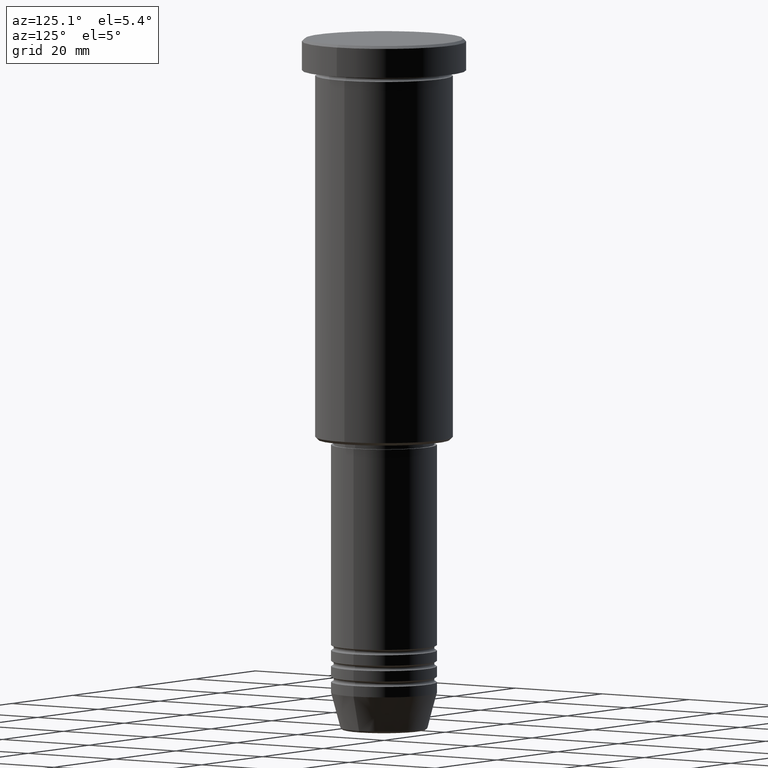
[diagram: clean part render]
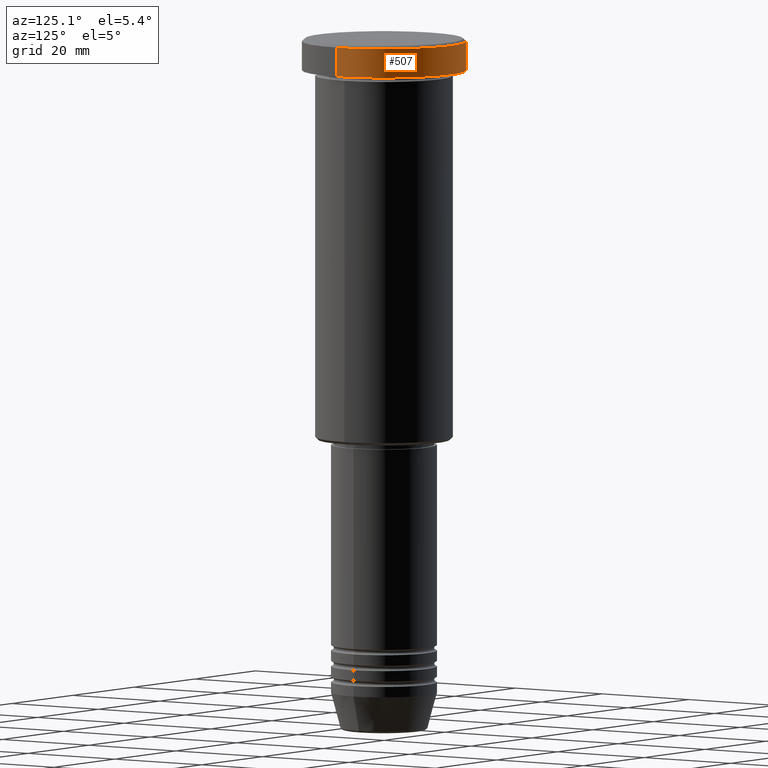
[diagram: same view with one face highlighted and labeled with its STEP entity id]
A machine part, auxiliary view. The second image highlights one B-rep face of the part: STEP entity #507.
In plain terms, the highlighted cylindrical surface (partial cylindrical patch) has radius 15.5 mm, axis along (-0, -0, 1).
Its self-contained STEP definition (entity closure, byte-faithful):
#6 = AXIS2_PLACEMENT_3D ( 'NONE', #925, #280, #1109 ) ;
#20 = CARTESIAN_POINT ( 'NONE',  ( 15.50000000000000000, 0.000000000000000000, -0.4999999999999709677 ) ) ;
#41 = ORIENTED_EDGE ( 'NONE', *, *, #343, .T. ) ;
#71 = DIRECTION ( 'NONE',  ( 0.000000000000000000, 0.000000000000000000, -1.000000000000000000 ) ) ;
#78 = VERTEX_POINT ( 'NONE', #707 ) ;
#105 = CARTESIAN_POINT ( 'NONE',  ( 15.50000000000000000, 0.000000000000000000, 0.000000000000000000 ) ) ;
#136 = AXIS2_PLACEMENT_3D ( 'NONE', #264, #71, #905 ) ;
#165 = CYLINDRICAL_SURFACE ( 'NONE', #6, 15.50000000000000000 ) ;
#239 = FACE_OUTER_BOUND ( 'NONE', #1165, .T. ) ;
#264 = CARTESIAN_POINT ( 'NONE',  ( 0.000000000000000000, 0.000000000000000000, -0.4999999999999709677 ) ) ;
#280 = DIRECTION ( 'NONE',  ( -0.000000000000000000, -0.000000000000000000, 1.000000000000000000 ) ) ;
#289 = VECTOR ( 'NONE', #1115, 1000.000000000000000 ) ;
#318 = DIRECTION ( 'NONE',  ( -0.000000000000000000, -0.000000000000000000, 1.000000000000000000 ) ) ;
#322 = CARTESIAN_POINT ( 'NONE',  ( 15.50000000000000000, 0.000000000000000000, -5.999999999999995559 ) ) ;
#343 = EDGE_CURVE ( 'NONE', #506, #78, #683, .T. ) ;
#368 = CIRCLE ( 'NONE', #136, 15.50000000000000000 ) ;
#372 = EDGE_CURVE ( 'NONE', #506, #1149, #597, .T. ) ;
#393 = EDGE_CURVE ( 'NONE', #78, #435, #938, .T. ) ;
#397 = CARTESIAN_POINT ( 'NONE',  ( 0.000000000000000000, 0.000000000000000000, -5.999999999999995559 ) ) ;
#414 = ORIENTED_EDGE ( 'NONE', *, *, #393, .T. ) ;
#435 = VERTEX_POINT ( 'NONE', #894 ) ;
#467 = DIRECTION ( 'NONE',  ( -0.000000000000000000, -0.000000000000000000, 1.000000000000000000 ) ) ;
#506 = VERTEX_POINT ( 'NONE', #322 ) ;
#507 = ADVANCED_FACE ( 'NONE', ( #239 ), #165, .T. ) ;
#597 = LINE ( 'NONE', #105, #1133 ) ;
#683 = CIRCLE ( 'NONE', #702, 15.50000000000000000 ) ;
#692 = EDGE_CURVE ( 'NONE', #435, #1149, #368, .T. ) ;
#702 = AXIS2_PLACEMENT_3D ( 'NONE', #397, #318, #1131 ) ;
#707 = CARTESIAN_POINT ( 'NONE',  ( -15.50000000000000000, 1.898202538678397557E-15, -5.999999999999995559 ) ) ;
#754 = CARTESIAN_POINT ( 'NONE',  ( -15.50000000000000000, 1.898202538678397557E-15, 0.000000000000000000 ) ) ;
#894 = CARTESIAN_POINT ( 'NONE',  ( -15.50000000000000000, 1.898202538678397557E-15, -0.4999999999999709677 ) ) ;
#899 = ORIENTED_EDGE ( 'NONE', *, *, #372, .F. ) ;
#905 = DIRECTION ( 'NONE',  ( 1.000000000000000000, 0.000000000000000000, 0.000000000000000000 ) ) ;
#925 = CARTESIAN_POINT ( 'NONE',  ( 0.000000000000000000, 0.000000000000000000, 0.000000000000000000 ) ) ;
#938 = LINE ( 'NONE', #754, #289 ) ;
#1109 = DIRECTION ( 'NONE',  ( 1.000000000000000000, 0.000000000000000000, 0.000000000000000000 ) ) ;
#1115 = DIRECTION ( 'NONE',  ( -0.000000000000000000, -0.000000000000000000, 1.000000000000000000 ) ) ;
#1131 = DIRECTION ( 'NONE',  ( 1.000000000000000000, 0.000000000000000000, 0.000000000000000000 ) ) ;
#1133 = VECTOR ( 'NONE', #467, 1000.000000000000000 ) ;
#1149 = VERTEX_POINT ( 'NONE', #20 ) ;
#1165 = EDGE_LOOP ( 'NONE', ( #41, #414, #1170, #899 ) ) ;
#1170 = ORIENTED_EDGE ( 'NONE', *, *, #692, .T. ) ;